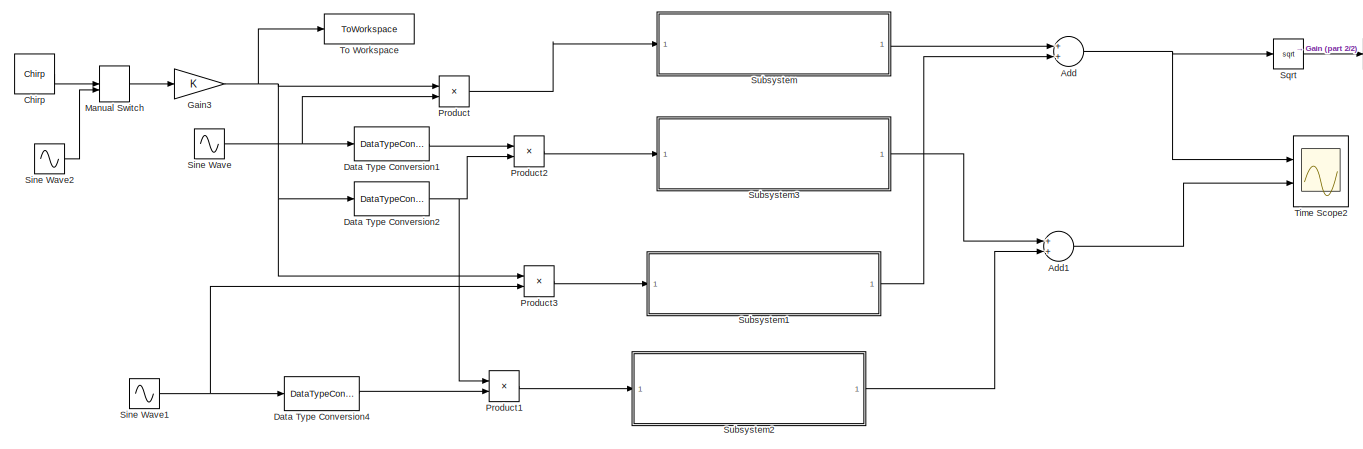
[diagram: root canvas - part 1/2, most of the canvas]
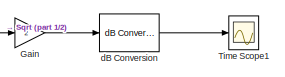
[diagram: root canvas - part 2/2, top right region]
MODEL slx_c76e99d4d3ce
KIND model
CONFIG AbsTol = auto
CONFIG EnableMultiTasking = off
CONFIG FixedStep = 1/69.333e3
CONFIG MaxStep = auto
CONFIG MinStep = auto
CONFIG PreLoadFcn = gsmcoeffs
CONFIG RelTol = 1e-3
CONFIG SampleTimeConstraint = Unconstrained
CONFIG Solver = FixedStepDiscrete
CONFIG SolverName = FixedStepDiscrete
CONFIG StartTime = 0.0
CONFIG StopTime = 2
BLOCK [Sum] Add
  InputSameDT = off
  OutDataTypeStr = Inherit: Inherit via internal rule
  Ports = [2, 1]
  SaturateOnIntegerOverflow = off
BLOCK [Sum] Add1
  InputSameDT = off
  OutDataTypeStr = fixdt(1,16,14)
  Ports = [2, 1]
  SaturateOnIntegerOverflow = off
BLOCK [Reference] Chirp  REF=dspsrcs4/Chirp
  Ports = [0, 1]
  SourceBlock = dspsrcs4/Chirp
  SourceProductBaseCode = DS
  SourceType = Chirp
BLOCK [DataTypeConversion] Data Type Conversion1
  OutDataTypeStr = fixdt(1,16,14)
  RndMeth = Floor
  SaturateOnIntegerOverflow = off
BLOCK [DataTypeConversion] Data Type Conversion2
  OutDataTypeStr = fixdt(1,16,14)
  RndMeth = Floor
  SaturateOnIntegerOverflow = off
BLOCK [DataTypeConversion] Data Type Conversion4
  OutDataTypeStr = fixdt(1,16,14)
  RndMeth = Floor
  SaturateOnIntegerOverflow = off
BLOCK [Gain] Gain
  Gain = 2
  OutDataTypeStr = Inherit: Inherit via internal rule
  ParamDataTypeStr = Inherit: Inherit via internal rule
  SaturateOnIntegerOverflow = off
BLOCK [Gain] Gain3
  OutDataTypeStr = Inherit: Inherit via internal rule
  ParamDataTypeStr = Inherit: Inherit via internal rule
  SaturateOnIntegerOverflow = off
BLOCK [ManualSwitch] Manual Switch
BLOCK [Product] Product
  InputSameDT = off
  OutDataTypeStr = double
  OutMax = 1
  OutMin = 0
  Ports = [2, 1]
  RndMeth = Floor
  SaturateOnIntegerOverflow = off
BLOCK [Product] Product1
  InputSameDT = off
  OutDataTypeStr = fixdt(1,16,14)
  OutMax = 1
  OutMin = 0
  Ports = [2, 1]
  RndMeth = Floor
  SaturateOnIntegerOverflow = off
BLOCK [Product] Product2
  InputSameDT = off
  OutDataTypeStr = fixdt(1,16,14)
  OutMax = 1
  OutMin = 0
  Ports = [2, 1]
  RndMeth = Floor
  SaturateOnIntegerOverflow = off
BLOCK [Product] Product3
  InputSameDT = off
  OutDataTypeStr = double
  OutMax = 1
  OutMin = 0
  Ports = [2, 1]
  RndMeth = Floor
  SaturateOnIntegerOverflow = off
BLOCK [Sin] Sine Wave
  Frequency = 14.44e3*2*pi
  Ports = [0, 1]
  SampleTime = 1/69.333e3
BLOCK [Sin] Sine Wave1
  Frequency = 14.44e3*2*pi
  Phase = pi/2
  Ports = [0, 1]
  SampleTime = 1/69.333e3
BLOCK [Sin] Sine Wave2
  Frequency = 14.44e3*2*pi
  Phase = pi/2
  Ports = [0, 1]
  SampleTime = 1/69.333e3
BLOCK [Sqrt] Sqrt
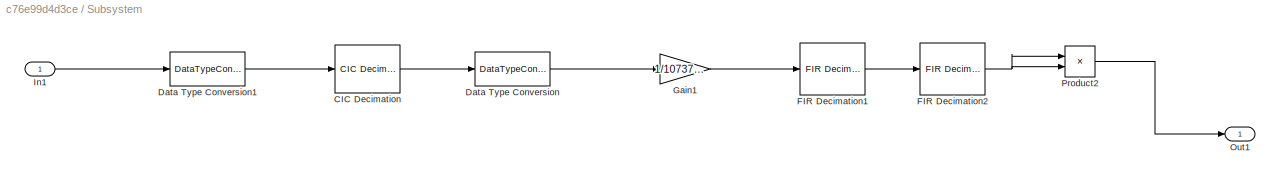
BLOCK [SubSystem] Subsystem
  Ports = [1, 1]
  RequestExecContextInheritance = off
BLOCK [Reference] Subsystem/CIC Decimation  REF=dspobslib/CIC
Decimation
  Ports = [1, 1]
  SourceBlock = dspobslib/CIC\nDecimation
  SourceProductBaseCode = DS
  SourceType = Obsolete CIC Decimation
  UserDataPersistent = on
BLOCK [DataTypeConversion] Subsystem/Data Type Conversion
  OutDataTypeStr = double
  RndMeth = Floor
  SaturateOnIntegerOverflow = off
BLOCK [DataTypeConversion] Subsystem/Data Type Conversion1
  OutDataTypeStr = fixdt(1,32,30)
  RndMeth = Floor
  SaturateOnIntegerOverflow = off
BLOCK [Reference] Subsystem/FIR Decimation1  REF=dspmlti4/FIR
Decimation
  Ports = [1, 1]
  SourceBlock = dspmlti4/FIR\nDecimation
  SourceProductBaseCode = DS
  SourceType = FIR Decimation
  UserDataPersistent = on
BLOCK [Reference] Subsystem/FIR Decimation2  REF=dspmlti4/FIR
Decimation
  Ports = [1, 1]
  SourceBlock = dspmlti4/FIR\nDecimation
  SourceProductBaseCode = DS
  SourceType = FIR Decimation
  UserDataPersistent = on
BLOCK [Gain] Subsystem/Gain1
  Gain = 1/1073741824
  OutDataTypeStr = Inherit: Inherit via internal rule
  ParamDataTypeStr = Inherit: Inherit via internal rule
  SaturateOnIntegerOverflow = off
BLOCK [Inport] Subsystem/In1
  IconDisplay = Port number
BLOCK [Outport] Subsystem/Out1
  IconDisplay = Port number
BLOCK [Product] Subsystem/Product2
  InputSameDT = off
  OutDataTypeStr = double
  OutMax = 1
  OutMin = 0
  Ports = [2, 1]
  RndMeth = Floor
  SaturateOnIntegerOverflow = off
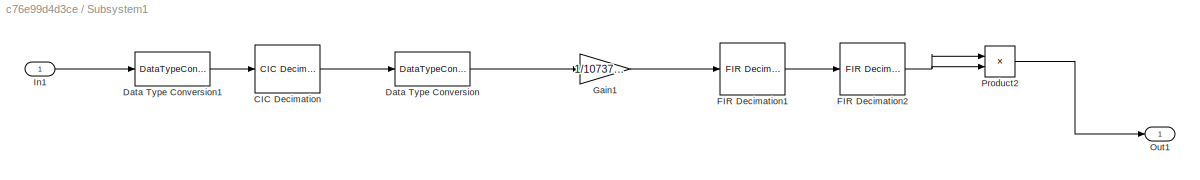
BLOCK [SubSystem] Subsystem1
  Ports = [1, 1]
  RequestExecContextInheritance = off
BLOCK [Reference] Subsystem1/CIC Decimation  REF=dspobslib/CIC
Decimation
  Ports = [1, 1]
  SourceBlock = dspobslib/CIC\nDecimation
  SourceProductBaseCode = DS
  SourceType = Obsolete CIC Decimation
  UserDataPersistent = on
BLOCK [DataTypeConversion] Subsystem1/Data Type Conversion
  OutDataTypeStr = double
  RndMeth = Floor
  SaturateOnIntegerOverflow = off
BLOCK [DataTypeConversion] Subsystem1/Data Type Conversion1
  OutDataTypeStr = fixdt(1,32,30)
  RndMeth = Floor
  SaturateOnIntegerOverflow = off
BLOCK [Reference] Subsystem1/FIR Decimation1  REF=dspmlti4/FIR
Decimation
  Ports = [1, 1]
  SourceBlock = dspmlti4/FIR\nDecimation
  SourceProductBaseCode = DS
  SourceType = FIR Decimation
  UserDataPersistent = on
BLOCK [Reference] Subsystem1/FIR Decimation2  REF=dspmlti4/FIR
Decimation
  Ports = [1, 1]
  SourceBlock = dspmlti4/FIR\nDecimation
  SourceProductBaseCode = DS
  SourceType = FIR Decimation
  UserDataPersistent = on
BLOCK [Gain] Subsystem1/Gain1
  Gain = 1/1073741824
  OutDataTypeStr = Inherit: Inherit via internal rule
  ParamDataTypeStr = Inherit: Inherit via internal rule
  SaturateOnIntegerOverflow = off
BLOCK [Inport] Subsystem1/In1
  IconDisplay = Port number
BLOCK [Outport] Subsystem1/Out1
  IconDisplay = Port number
BLOCK [Product] Subsystem1/Product2
  InputSameDT = off
  OutDataTypeStr = double
  OutMax = 1
  OutMin = 0
  Ports = [2, 1]
  RndMeth = Floor
  SaturateOnIntegerOverflow = off
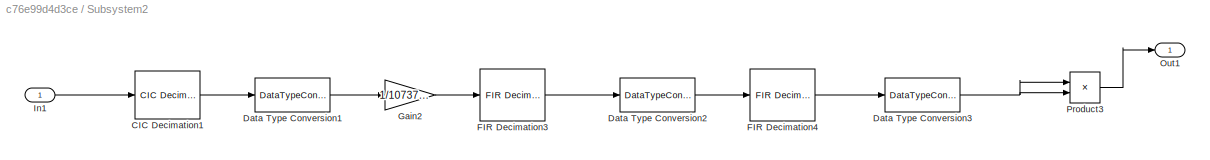
BLOCK [SubSystem] Subsystem2
  Ports = [1, 1]
  RequestExecContextInheritance = off
BLOCK [Reference] Subsystem2/CIC Decimation1  REF=dspmlti4/CIC
Decimation
  Ports = [1, 1]
  SourceBlock = dspmlti4/CIC\nDecimation
  SourceProductBaseCode = DS
  SourceType = CIC Decimation
  UserDataPersistent = on
BLOCK [DataTypeConversion] Subsystem2/Data Type Conversion1
  OutDataTypeStr = double
  RndMeth = Floor
  SaturateOnIntegerOverflow = off
BLOCK [DataTypeConversion] Subsystem2/Data Type Conversion2
  OutDataTypeStr = fixdt(1,16,14)
  RndMeth = Floor
  SaturateOnIntegerOverflow = off
BLOCK [DataTypeConversion] Subsystem2/Data Type Conversion3
  OutDataTypeStr = fixdt(1,16,14)
  RndMeth = Floor
  SaturateOnIntegerOverflow = off
BLOCK [Reference] Subsystem2/FIR Decimation3  REF=dspmlti4/FIR
Decimation
  Ports = [1, 1]
  SourceBlock = dspmlti4/FIR\nDecimation
  SourceProductBaseCode = DS
  SourceType = FIR Decimation
  UserDataPersistent = on
BLOCK [Reference] Subsystem2/FIR Decimation4  REF=dspmlti4/FIR
Decimation
  Ports = [1, 1]
  SourceBlock = dspmlti4/FIR\nDecimation
  SourceProductBaseCode = DS
  SourceType = FIR Decimation
  UserDataPersistent = on
BLOCK [Gain] Subsystem2/Gain2
  Gain = 1/1073741824
  OutDataTypeStr = fixdt(1,16,14)
  ParamDataTypeStr = Inherit: Inherit via internal rule
  RndMeth = Simplest
  SaturateOnIntegerOverflow = off
BLOCK [Inport] Subsystem2/In1
  IconDisplay = Port number
BLOCK [Outport] Subsystem2/Out1
  IconDisplay = Port number
  VectorParamsAs1DForOutWhenUnconnected = on
BLOCK [Product] Subsystem2/Product3
  InputSameDT = off
  OutDataTypeStr = fixdt(1,16,14)
  OutMax = 1
  OutMin = 0
  Ports = [2, 1]
  RndMeth = Floor
  SaturateOnIntegerOverflow = off
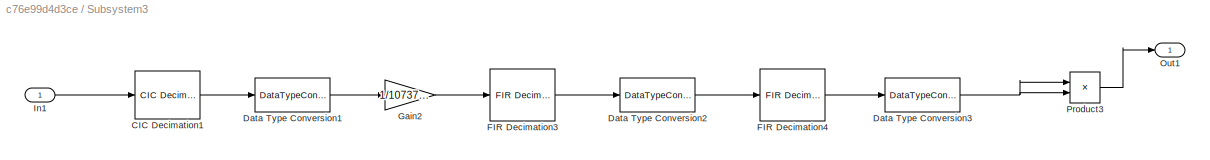
BLOCK [SubSystem] Subsystem3
  Ports = [1, 1]
  RequestExecContextInheritance = off
BLOCK [Reference] Subsystem3/CIC Decimation1  REF=dspmlti4/CIC
Decimation
  Ports = [1, 1]
  SourceBlock = dspmlti4/CIC\nDecimation
  SourceProductBaseCode = DS
  SourceType = CIC Decimation
  UserDataPersistent = on
BLOCK [DataTypeConversion] Subsystem3/Data Type Conversion1
  OutDataTypeStr = double
  RndMeth = Floor
  SaturateOnIntegerOverflow = off
BLOCK [DataTypeConversion] Subsystem3/Data Type Conversion2
  OutDataTypeStr = fixdt(1,16,14)
  RndMeth = Floor
  SaturateOnIntegerOverflow = off
BLOCK [DataTypeConversion] Subsystem3/Data Type Conversion3
  OutDataTypeStr = fixdt(1,16,14)
  RndMeth = Floor
  SaturateOnIntegerOverflow = off
BLOCK [Reference] Subsystem3/FIR Decimation3  REF=dspmlti4/FIR
Decimation
  Ports = [1, 1]
  SourceBlock = dspmlti4/FIR\nDecimation
  SourceProductBaseCode = DS
  SourceType = FIR Decimation
  UserDataPersistent = on
BLOCK [Reference] Subsystem3/FIR Decimation4  REF=dspmlti4/FIR
Decimation
  Ports = [1, 1]
  SourceBlock = dspmlti4/FIR\nDecimation
  SourceProductBaseCode = DS
  SourceType = FIR Decimation
  UserDataPersistent = on
BLOCK [Gain] Subsystem3/Gain2
  Gain = 1/1073741824
  OutDataTypeStr = fixdt(1,16,14)
  ParamDataTypeStr = Inherit: Inherit via internal rule
  RndMeth = Simplest
  SaturateOnIntegerOverflow = off
BLOCK [Inport] Subsystem3/In1
  IconDisplay = Port number
BLOCK [Outport] Subsystem3/Out1
  IconDisplay = Port number
  VectorParamsAs1DForOutWhenUnconnected = on
BLOCK [Product] Subsystem3/Product3
  InputSameDT = off
  OutDataTypeStr = fixdt(1,16,14)
  OutMax = 1
  OutMin = 0
  Ports = [2, 1]
  RndMeth = Floor
  SaturateOnIntegerOverflow = off
BLOCK [Scope] Time Scope1
  DefaultConfigurationName = spbscopes.TimeScopeBlockCfg
  Floating = off
  NumInputPorts = 1
  Ports = [1]
  ScopeSpecificationString = spbscopes.TimeScopeBlockCfg('CurrentConfiguration', extmgr.ConfigurationSet(extmgr.Configuration('Core','General UI',true,'ShowNewAction',true,'ShowLoadConfigSet',true,'ShowSaveConfigSet',true),extmgr.Configuration('Core','Source UI',true,'ShowRecentSources',true),extmgr.Configuration('Sources','WiredSimulink',true,'PointsPerSignal',500000,'DataLoggingVariableName','ScopeData1'),extmgr.Configurati...<+1625ch>
BLOCK [Scope] Time Scope2
  DefaultConfigurationName = spbscopes.TimeScopeBlockCfg
  Floating = off
  NumInputPorts = 2
  Ports = [2]
  ScopeSpecificationString = spbscopes.TimeScopeBlockCfg('CurrentConfiguration', extmgr.ConfigurationSet(extmgr.Configuration('Core','General UI',true,'ShowNewAction',true,'ShowLoadConfigSet',true,'ShowSaveConfigSet',true),extmgr.Configuration('Core','Source UI',true,'ShowRecentSources',true),extmgr.Configuration('Sources','WiredSimulink',true,'PointsPerSignal',500000,'DataLoggingVariableName','ScopeData1'),extmgr.Configurati...<+2193ch>
BLOCK [ToWorkspace] To Workspace
  MaxDataPoints = inf
  Ports = [1]
  SampleTime = -1
  Save2DSignal = 2-D array (concatenate along first dimension)
  VariableName = simout
BLOCK [Reference] dB Conversion  REF=dspmathops/dB Conversion
  Ports = [1, 1]
  SourceBlock = dspmathops/dB Conversion
  SourceProductBaseCode = DS
  SourceType = dB Conversion
LINE Add1:1 -> Time Scope2:2
NET Add:1 -> Sqrt:1, Time Scope2:1
LINE Chirp:1 -> Manual Switch:1
LINE Data Type Conversion1:1 -> Product2:1
NET Data Type Conversion2:1 -> Product1:1, Product2:2
LINE Data Type Conversion4:1 -> Product1:2
NET Gain3:1 -> Data Type Conversion2:1, Product3:1, Product:1, To Workspace:1
LINE Gain:1 -> dB Conversion:1
LINE Manual Switch:1 -> Gain3:1
LINE Product1:1 -> Subsystem2:1
LINE Product2:1 -> Subsystem3:1
LINE Product3:1 -> Subsystem1:1
LINE Product:1 -> Subsystem:1
NET Sine Wave1:1 -> Data Type Conversion4:1, Product3:2
LINE Sine Wave2:1 -> Manual Switch:2
NET Sine Wave:1 -> Data Type Conversion1:1, Product:2
LINE Sqrt:1 -> Gain:1
LINE Subsystem/CIC Decimation:1 -> Subsystem/Data Type Conversion:1
LINE Subsystem/Data Type Conversion1:1 -> Subsystem/CIC Decimation:1
LINE Subsystem/Data Type Conversion:1 -> Subsystem/Gain1:1
LINE Subsystem/FIR Decimation1:1 -> Subsystem/FIR Decimation2:1
NET Subsystem/FIR Decimation2:1 -> Subsystem/Product2:1, Subsystem/Product2:2
LINE Subsystem/Gain1:1 -> Subsystem/FIR Decimation1:1
LINE Subsystem/In1:1 -> Subsystem/Data Type Conversion1:1
LINE Subsystem/Product2:1 -> Subsystem/Out1:1
LINE Subsystem1/CIC Decimation:1 -> Subsystem1/Data Type Conversion:1
LINE Subsystem1/Data Type Conversion1:1 -> Subsystem1/CIC Decimation:1
LINE Subsystem1/Data Type Conversion:1 -> Subsystem1/Gain1:1
LINE Subsystem1/FIR Decimation1:1 -> Subsystem1/FIR Decimation2:1
NET Subsystem1/FIR Decimation2:1 -> Subsystem1/Product2:1, Subsystem1/Product2:2
LINE Subsystem1/Gain1:1 -> Subsystem1/FIR Decimation1:1
LINE Subsystem1/In1:1 -> Subsystem1/Data Type Conversion1:1
LINE Subsystem1/Product2:1 -> Subsystem1/Out1:1
LINE Subsystem1:1 -> Add:2
LINE Subsystem2/CIC Decimation1:1 -> Subsystem2/Data Type Conversion1:1
LINE Subsystem2/Data Type Conversion1:1 -> Subsystem2/Gain2:1
LINE Subsystem2/Data Type Conversion2:1 -> Subsystem2/FIR Decimation4:1
NET Subsystem2/Data Type Conversion3:1 -> Subsystem2/Product3:1, Subsystem2/Product3:2
LINE Subsystem2/FIR Decimation3:1 -> Subsystem2/Data Type Conversion2:1
LINE Subsystem2/FIR Decimation4:1 -> Subsystem2/Data Type Conversion3:1
LINE Subsystem2/Gain2:1 -> Subsystem2/FIR Decimation3:1
LINE Subsystem2/In1:1 -> Subsystem2/CIC Decimation1:1
LINE Subsystem2/Product3:1 -> Subsystem2/Out1:1
LINE Subsystem2:1 -> Add1:2
LINE Subsystem3/CIC Decimation1:1 -> Subsystem3/Data Type Conversion1:1
LINE Subsystem3/Data Type Conversion1:1 -> Subsystem3/Gain2:1
LINE Subsystem3/Data Type Conversion2:1 -> Subsystem3/FIR Decimation4:1
NET Subsystem3/Data Type Conversion3:1 -> Subsystem3/Product3:1, Subsystem3/Product3:2
LINE Subsystem3/FIR Decimation3:1 -> Subsystem3/Data Type Conversion2:1
LINE Subsystem3/FIR Decimation4:1 -> Subsystem3/Data Type Conversion3:1
LINE Subsystem3/Gain2:1 -> Subsystem3/FIR Decimation3:1
LINE Subsystem3/In1:1 -> Subsystem3/CIC Decimation1:1
LINE Subsystem3/Product3:1 -> Subsystem3/Out1:1
LINE Subsystem3:1 -> Add1:1
LINE Subsystem:1 -> Add:1
LINE dB Conversion:1 -> Time Scope1:1
note: NET lines group one-source signal fan-out (src -> all destinations, sorted); 1:1 wires keep LINE
